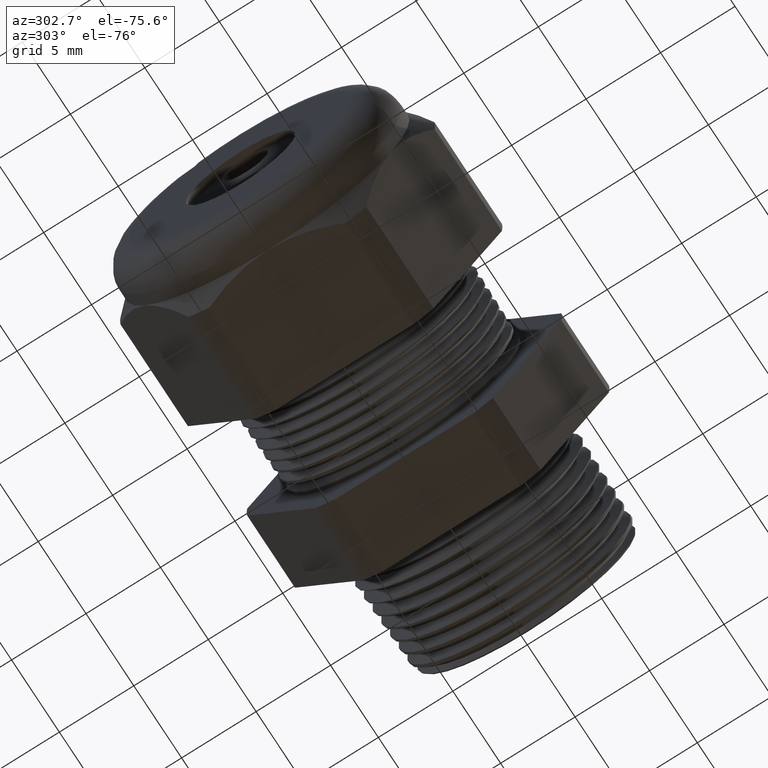
[diagram: clean part render]
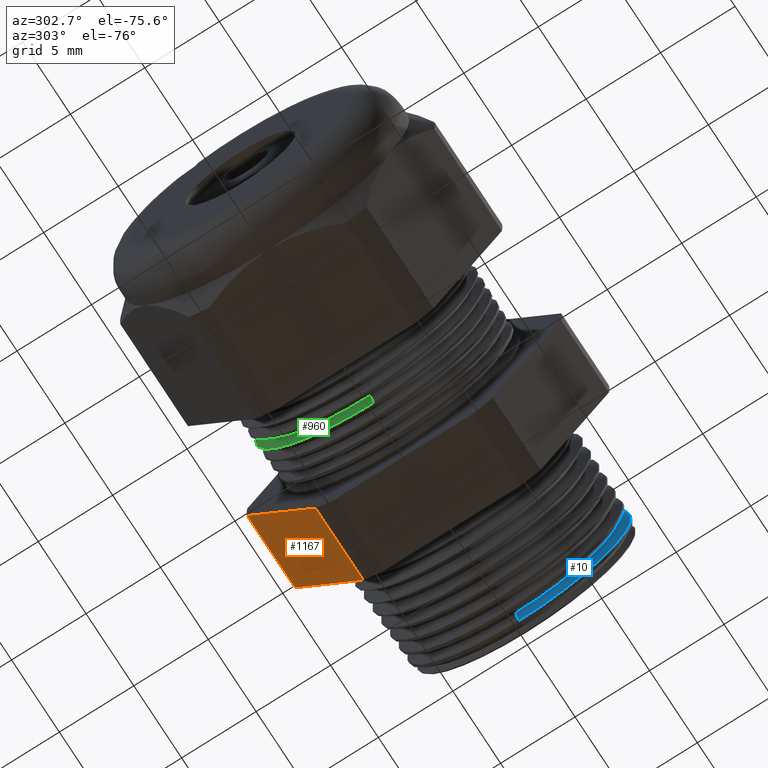
[diagram: same view with three faces highlighted in distinct colors, each labeled with its STEP entity id]
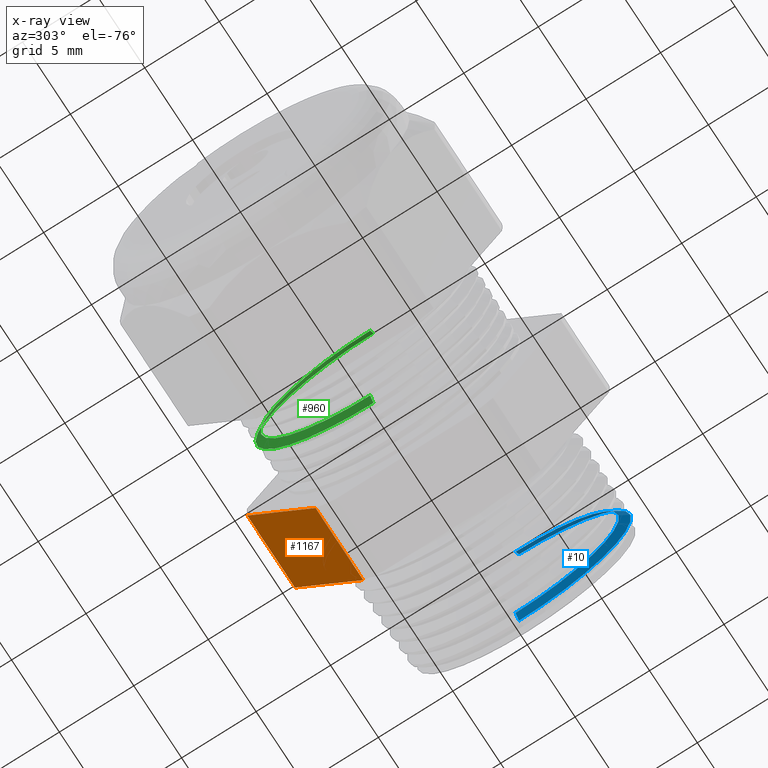
[diagram: x-ray of the same camera — body ghosted, the three highlighted faces saturated]
A machine part, auxiliary view with three faces highlighted in distinct colors.
The next image is the same camera in x-ray (body ghosted, the three faces saturated) — at least one of them is partly hidden behind the body in this view.
Their STEP definitions:

[orange] entity #1167 — the highlighted planar face has unit normal (0, 0.866, -0.5).
#517 = EDGE_CURVE ( 'NONE', #518, #519, #2344, .T. ) ;
#518 = VERTEX_POINT ( 'NONE', #2340 ) ;
#519 = VERTEX_POINT ( 'NONE', #2339 ) ;
#1146 = ORIENTED_EDGE ( 'NONE', *, *, #1147, .T. ) ;
#1147 = EDGE_CURVE ( 'NONE', #518, #1148, #3561, .T. ) ;
#1148 = VERTEX_POINT ( 'NONE', #3553 ) ;
#1149 = ORIENTED_EDGE ( 'NONE', *, *, #1150, .F. ) ;
#1150 = EDGE_CURVE ( 'NONE', #1171, #1148, #3552, .T. ) ;
#1167 = ADVANCED_FACE ( 'NONE', ( #3581 ), #3580, .T. ) ;
#1168 = EDGE_LOOP ( 'NONE', ( #1169, #1172, #1146, #1149 ) ) ;
#1169 = ORIENTED_EDGE ( 'NONE', *, *, #1170, .F. ) ;
#1170 = EDGE_CURVE ( 'NONE', #519, #1171, #3575, .T. ) ;
#1171 = VERTEX_POINT ( 'NONE', #3571 ) ;
#1172 = ORIENTED_EDGE ( 'NONE', *, *, #517, .F. ) ;
#2339 = CARTESIAN_POINT ( 'NONE',  ( -0.3100000000000000000, 0.4150909474475088000, -0.03104138925901222000 ) ) ;
#2340 = CARTESIAN_POINT ( 'NONE',  ( -0.3100000000000000000, 0.2344281053908202900, -0.3439586107409879900 ) ) ;
#2341 = DIRECTION ( 'NONE',  ( 0.0000000000000000000, 0.5000000000000001100, 0.8660254037844386000 ) ) ;
#2342 = VECTOR ( 'NONE', #2341, 39.37007874015748900 ) ;
#2343 = CARTESIAN_POINT ( 'NONE',  ( -0.3100000000000000000, 0.5122595264191646100, 0.1372595264191645000 ) ) ;
#2344 = LINE ( 'NONE', #2343, #2342 ) ;
#3549 = DIRECTION ( 'NONE',  ( 0.0000000000000000000, -0.5000000000000001100, -0.8660254037844386000 ) ) ;
#3550 = VECTOR ( 'NONE', #3549, 39.37007874015748900 ) ;
#3551 = CARTESIAN_POINT ( 'NONE',  ( -0.5068503937007874400, 0.5122595264191646100, 0.1372595264191645000 ) ) ;
#3552 = LINE ( 'NONE', #3551, #3550 ) ;
#3553 = CARTESIAN_POINT ( 'NONE',  ( -0.5068503937007874400, 0.2344281053908202900, -0.3439586107409878800 ) ) ;
#3554 = DIRECTION ( 'NONE',  ( -1.000000000000000000, 0.0000000000000000000, 0.0000000000000000000 ) ) ;
#3555 = VECTOR ( 'NONE', #3554, 39.37007874015748100 ) ;
#3556 = CARTESIAN_POINT ( 'NONE',  ( 0.0000000000000000000, 0.2344281053908202900, -0.3439586107409879900 ) ) ;
#3561 = LINE ( 'NONE', #3556, #3555 ) ;
#3571 = CARTESIAN_POINT ( 'NONE',  ( -0.5068503937007874400, 0.4150909474475088000, -0.03104138925901223100 ) ) ;
#3572 = DIRECTION ( 'NONE',  ( -1.000000000000000000, 0.0000000000000000000, 0.0000000000000000000 ) ) ;
#3573 = VECTOR ( 'NONE', #3572, 39.37007874015748100 ) ;
#3574 = CARTESIAN_POINT ( 'NONE',  ( 0.0000000000000000000, 0.4150909474475088000, -0.03104138925901223100 ) ) ;
#3575 = LINE ( 'NONE', #3574, #3573 ) ;
#3576 = DIRECTION ( 'NONE',  ( 0.0000000000000000000, 0.5000000000000002200, 0.8660254037844386000 ) ) ;
#3577 = DIRECTION ( 'NONE',  ( 0.0000000000000000000, 0.8660254037844386000, -0.5000000000000002200 ) ) ;
#3578 = CARTESIAN_POINT ( 'NONE',  ( 0.0000000000000000000, 0.4150909474475088000, -0.03104138925901223100 ) ) ;
#3579 = AXIS2_PLACEMENT_3D ( 'NONE', #3578, #3577, #3576 ) ;
#3580 = PLANE ( 'NONE',  #3579 ) ;
#3581 = FACE_OUTER_BOUND ( 'NONE', #1168, .T. ) ;

[blue] entity #10 — the highlighted conical surface has half-angle 58.5 deg.
#6 = EDGE_CURVE ( 'NONE', #680, #679, #1374, .T. ) ;
#10 = ADVANCED_FACE ( 'NONE', ( #1375 ), #1435, .T. ) ;
#666 = VERTEX_POINT ( 'NONE', #2647 ) ;
#668 = EDGE_CURVE ( 'NONE', #679, #666, #2646, .T. ) ;
#679 = VERTEX_POINT ( 'NONE', #2681 ) ;
#680 = VERTEX_POINT ( 'NONE', #2680 ) ;
#682 = EDGE_CURVE ( 'NONE', #680, #683, #2679, .T. ) ;
#683 = VERTEX_POINT ( 'NONE', #2675 ) ;
#1121 = EDGE_CURVE ( 'NONE', #666, #683, #3480, .T. ) ;
#1370 = DIRECTION ( 'NONE',  ( 0.0000000000000000000, 0.0000000000000000000, -1.000000000000000000 ) ) ;
#1371 = DIRECTION ( 'NONE',  ( 1.000000000000000000, 0.0000000000000000000, 0.0000000000000000000 ) ) ;
#1372 = CARTESIAN_POINT ( 'NONE',  ( -0.04847073567907516500, 0.0000000000000000000, 0.0000000000000000000 ) ) ;
#1373 = AXIS2_PLACEMENT_3D ( 'NONE', #1372, #1371, #1370 ) ;
#1374 = CIRCLE ( 'NONE', #1373, 0.2730123959962614800 ) ;
#1375 = FACE_OUTER_BOUND ( 'NONE', #4238, .T. ) ;
#1431 = DIRECTION ( 'NONE',  ( 0.0000000000000000000, 0.0000000000000000000, -1.000000000000000000 ) ) ;
#1432 = DIRECTION ( 'NONE',  ( 1.000000000000000000, 0.0000000000000000000, 0.0000000000000000000 ) ) ;
#1433 = CARTESIAN_POINT ( 'NONE',  ( -0.04847073567907516500, 0.0000000000000000000, 0.0000000000000000000 ) ) ;
#1434 = AXIS2_PLACEMENT_3D ( 'NONE', #1433, #1432, #1431 ) ;
#1435 = CONICAL_SURFACE ( 'NONE', #1434, 0.2730123959962614800, 1.021017612416701200 ) ;
#2643 = DIRECTION ( 'NONE',  ( 0.5224985647159332600, 0.0000000000000000000, -0.8526401643541019500 ) ) ;
#2644 = VECTOR ( 'NONE', #2643, 39.37007874015747400 ) ;
#2645 = CARTESIAN_POINT ( 'NONE',  ( -0.04847073567907516500, 0.0000000000000000000, -0.2730123959962614800 ) ) ;
#2646 = LINE ( 'NONE', #2645, #2644 ) ;
#2647 = CARTESIAN_POINT ( 'NONE',  ( -0.03424021830932633800, 3.627826196997647400E-017, -0.2962344897748053800 ) ) ;
#2675 = CARTESIAN_POINT ( 'NONE',  ( -0.03424021830932633800, 0.0000000000000000000, 0.2962344897748053800 ) ) ;
#2676 = DIRECTION ( 'NONE',  ( 0.5224985647159332600, 1.044183048100724200E-016, 0.8526401643541019500 ) ) ;
#2677 = VECTOR ( 'NONE', #2676, 39.37007874015747400 ) ;
#2678 = CARTESIAN_POINT ( 'NONE',  ( -0.04847073567907516500, 3.343437568843712800E-017, 0.2730123959962614800 ) ) ;
#2679 = LINE ( 'NONE', #2678, #2677 ) ;
#2680 = CARTESIAN_POINT ( 'NONE',  ( -0.04847073567907516500, 0.0000000000000000000, 0.2730123959962614800 ) ) ;
#2681 = CARTESIAN_POINT ( 'NONE',  ( -0.04847073567907516500, 3.489997397665207900E-017, -0.2730123959962614800 ) ) ;
#3476 = DIRECTION ( 'NONE',  ( 0.0000000000000000000, 0.0000000000000000000, -1.000000000000000000 ) ) ;
#3477 = DIRECTION ( 'NONE',  ( -1.000000000000000000, 0.0000000000000000000, 0.0000000000000000000 ) ) ;
#3478 = CARTESIAN_POINT ( 'NONE',  ( -0.03424021830932633800, 0.0000000000000000000, 0.0000000000000000000 ) ) ;
#3479 = AXIS2_PLACEMENT_3D ( 'NONE', #3478, #3477, #3476 ) ;
#3480 = CIRCLE ( 'NONE', #3479, 0.2962344897748053200 ) ;
#4234 = ORIENTED_EDGE ( 'NONE', *, *, #6, .T. ) ;
#4235 = ORIENTED_EDGE ( 'NONE', *, *, #1121, .T. ) ;
#4236 = ORIENTED_EDGE ( 'NONE', *, *, #682, .F. ) ;
#4237 = ORIENTED_EDGE ( 'NONE', *, *, #668, .T. ) ;
#4238 = EDGE_LOOP ( 'NONE', ( #4236, #4234, #4237, #4235 ) ) ;

[green] entity #960 — the highlighted conical surface has half-angle 58.5 deg.
#960 = ADVANCED_FACE ( 'NONE', ( #3197 ), #3196, .T. ) ;
#961 = EDGE_LOOP ( 'NONE', ( #962, #1041, #1044, #1047 ) ) ;
#962 = ORIENTED_EDGE ( 'NONE', *, *, #1038, .T. ) ;
#1038 = EDGE_CURVE ( 'NONE', #1039, #1040, #3366, .T. ) ;
#1039 = VERTEX_POINT ( 'NONE', #3361 ) ;
#1040 = VERTEX_POINT ( 'NONE', #3360 ) ;
#1041 = ORIENTED_EDGE ( 'NONE', *, *, #1042, .T. ) ;
#1042 = EDGE_CURVE ( 'NONE', #1040, #1043, #3359, .T. ) ;
#1043 = VERTEX_POINT ( 'NONE', #3355 ) ;
#1044 = ORIENTED_EDGE ( 'NONE', *, *, #1045, .T. ) ;
#1045 = EDGE_CURVE ( 'NONE', #1043, #1046, #3354, .T. ) ;
#1046 = VERTEX_POINT ( 'NONE', #3349 ) ;
#1047 = ORIENTED_EDGE ( 'NONE', *, *, #1048, .F. ) ;
#1048 = EDGE_CURVE ( 'NONE', #1039, #1046, #3348, .T. ) ;
#3192 = DIRECTION ( 'NONE',  ( 0.0000000000000000000, 0.0000000000000000000, -1.000000000000000000 ) ) ;
#3193 = DIRECTION ( 'NONE',  ( 1.000000000000000000, 0.0000000000000000000, 0.0000000000000000000 ) ) ;
#3194 = CARTESIAN_POINT ( 'NONE',  ( -0.6470917547981793700, 0.0000000000000000000, 0.0000000000000000000 ) ) ;
#3195 = AXIS2_PLACEMENT_3D ( 'NONE', #3194, #3193, #3192 ) ;
#3196 = CONICAL_SURFACE ( 'NONE', #3195, 0.2896307351718083200, 1.021017612416705000 ) ;
#3197 = FACE_OUTER_BOUND ( 'NONE', #961, .T. ) ;
#3345 = DIRECTION ( 'NONE',  ( 0.5224985647159299300, 0.0000000000000000000, -0.8526401643541037200 ) ) ;
#3346 = VECTOR ( 'NONE', #3345, 39.37007874015748100 ) ;
#3347 = CARTESIAN_POINT ( 'NONE',  ( -0.6470917547981793700, 0.0000000000000000000, -0.2896307351718083200 ) ) ;
#3348 = LINE ( 'NONE', #3347, #3346 ) ;
#3349 = CARTESIAN_POINT ( 'NONE',  ( -0.6334299194138568500, 3.819977376450093400E-017, -0.3119248242929889000 ) ) ;
#3350 = DIRECTION ( 'NONE',  ( 0.0000000000000000000, 0.0000000000000000000, -1.000000000000000000 ) ) ;
#3351 = DIRECTION ( 'NONE',  ( -1.000000000000000000, 0.0000000000000000000, 0.0000000000000000000 ) ) ;
#3352 = CARTESIAN_POINT ( 'NONE',  ( -0.6334299194138568500, 0.0000000000000000000, 0.0000000000000000000 ) ) ;
#3353 = AXIS2_PLACEMENT_3D ( 'NONE', #3352, #3351, #3350 ) ;
#3354 = CIRCLE ( 'NONE', #3353, 0.3119248242929889000 ) ;
#3355 = CARTESIAN_POINT ( 'NONE',  ( -0.6334299194138568500, 0.0000000000000000000, 0.3119248242929889000 ) ) ;
#3356 = DIRECTION ( 'NONE',  ( 0.5224985647159299300, 1.044183048100726400E-016, 0.8526401643541037200 ) ) ;
#3357 = VECTOR ( 'NONE', #3356, 39.37007874015748100 ) ;
#3358 = CARTESIAN_POINT ( 'NONE',  ( -0.6470917547981793700, 3.546953527628497700E-017, 0.2896307351718083200 ) ) ;
#3359 = LINE ( 'NONE', #3358, #3357 ) ;
#3360 = CARTESIAN_POINT ( 'NONE',  ( -0.6470917547981793700, 0.0000000000000000000, 0.2896307351718083200 ) ) ;
#3361 = CARTESIAN_POINT ( 'NONE',  ( -0.6470917547981793700, 3.687656511454631100E-017, -0.2896307351718083200 ) ) ;
#3362 = DIRECTION ( 'NONE',  ( 0.0000000000000000000, 0.0000000000000000000, -1.000000000000000000 ) ) ;
#3363 = DIRECTION ( 'NONE',  ( 1.000000000000000000, 0.0000000000000000000, 0.0000000000000000000 ) ) ;
#3364 = CARTESIAN_POINT ( 'NONE',  ( -0.6470917547981793700, 0.0000000000000000000, 0.0000000000000000000 ) ) ;
#3365 = AXIS2_PLACEMENT_3D ( 'NONE', #3364, #3363, #3362 ) ;
#3366 = CIRCLE ( 'NONE', #3365, 0.2896307351718083200 ) ;